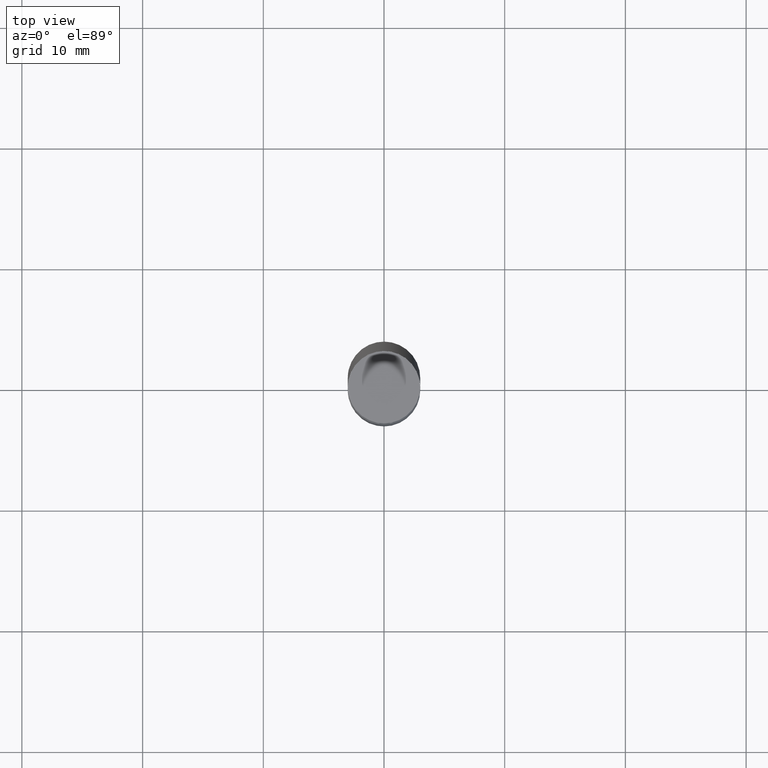
[diagram: clean part render]
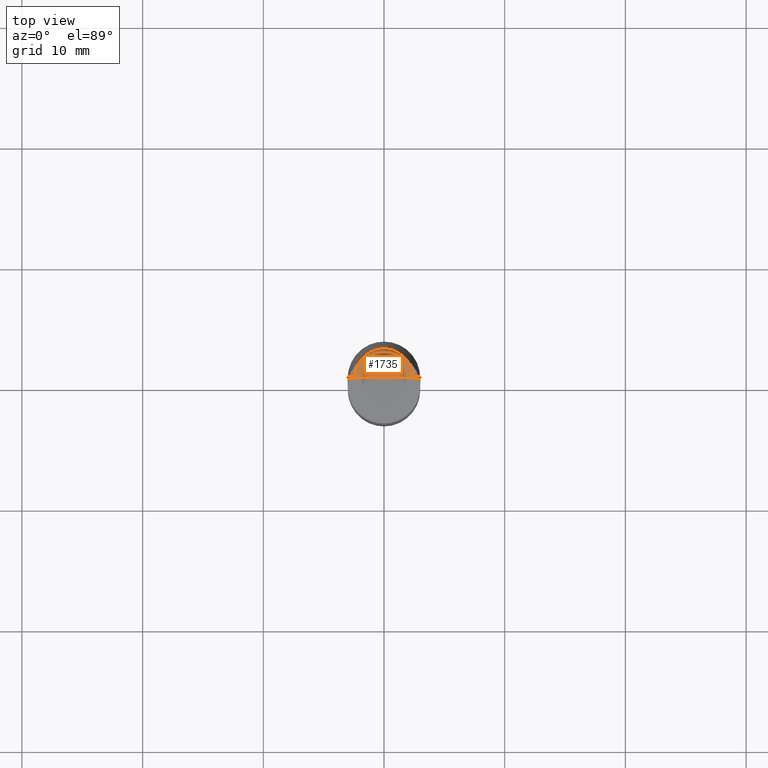
[diagram: same view with one face highlighted and labeled with its STEP entity id]
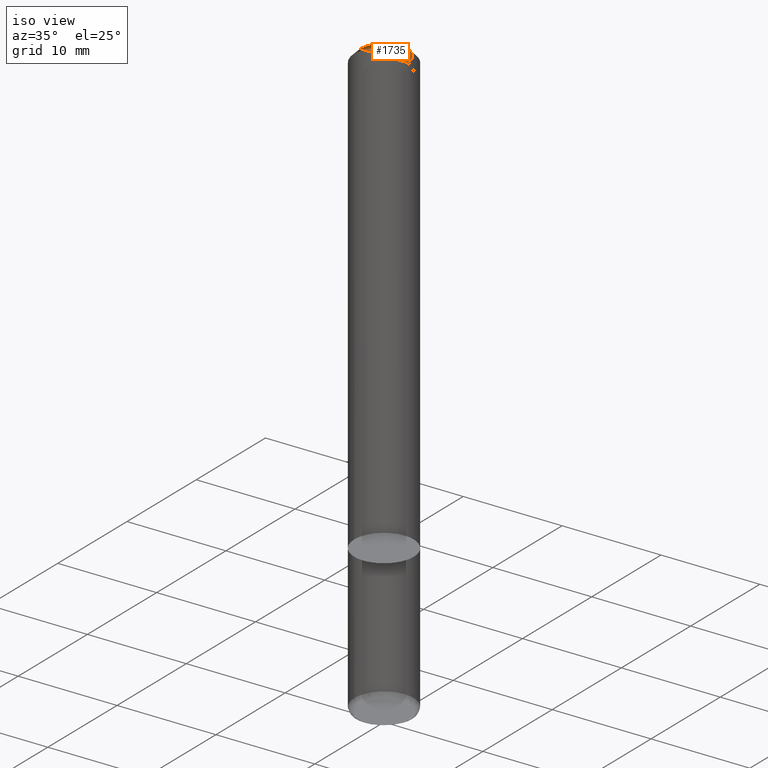
[diagram: same view with one face highlighted and labeled with its STEP entity id]
A machine part, top view. The second image highlights one B-rep face of the part: STEP entity #1735.
A second angle (iso view) of the same face is appended — the face is thin or edge-on in the first view.
In plain terms, the highlighted face is a freeform B-spline surface patch.
Its self-contained STEP definition (entity closure, byte-faithful):
#1495=CARTESIAN_POINT('',(2.4,0.0,45.0));
#1496=CARTESIAN_POINT('',(2.4,2.4,45.0));
#1497=CARTESIAN_POINT('',(0.0,2.4,45.0));
#1498=CARTESIAN_POINT('',(-2.4,2.4,45.0));
#1499=CARTESIAN_POINT('',(-2.4,0.0,45.0));
#1500=CARTESIAN_POINT('',(0.0,0.0,45.0));
#1720=(
BOUNDED_SURFACE()
B_SPLINE_SURFACE(1,2,(
(#1495,#1496,#1497,#1498,#1499),
(#1500,#1500,#1500,#1500,#1500)
), .UNSPECIFIED.,.F.,.F.,.F.)
B_SPLINE_SURFACE_WITH_KNOTS((2,2),(3,2,3),(
0.0,1.0),(
0.0,0.5,1.0), .UNSPECIFIED.)
GEOMETRIC_REPRESENTATION_ITEM()
RATIONAL_B_SPLINE_SURFACE(((1.0,0.707106781187,1.0,0.707106781187,1.0),
(1.0,0.707106781187,1.0,0.707106781187,1.0)
))
REPRESENTATION_ITEM('')
SURFACE()
);
#1721=(
BOUNDED_CURVE()
B_SPLINE_CURVE(1,(#1500,#1495),.UNSPECIFIED.,.F.,.F.)
B_SPLINE_CURVE_WITH_KNOTS((2,2),
(0.0,1.0),.UNSPECIFIED.)
CURVE()
GEOMETRIC_REPRESENTATION_ITEM()
RATIONAL_B_SPLINE_CURVE((1.0,1.0))
REPRESENTATION_ITEM('')
);
#1722=(
BOUNDED_CURVE()
B_SPLINE_CURVE(2,(#1495,#1496,#1497,#1498,#1499),.UNSPECIFIED.,.F.,.F.)
B_SPLINE_CURVE_WITH_KNOTS((3,2,3),
(0.0,0.5,1.0),.UNSPECIFIED.)
CURVE()
GEOMETRIC_REPRESENTATION_ITEM()
RATIONAL_B_SPLINE_CURVE((1.0,0.707106781187,1.0,0.707106781187,1.0))
REPRESENTATION_ITEM('')
);
#1723=(
BOUNDED_CURVE()
B_SPLINE_CURVE(1,(#1499,#1500),.UNSPECIFIED.,.F.,.F.)
B_SPLINE_CURVE_WITH_KNOTS((2,2),
(0.0,1.0),.UNSPECIFIED.)
CURVE()
GEOMETRIC_REPRESENTATION_ITEM()
RATIONAL_B_SPLINE_CURVE((1.0,1.0))
REPRESENTATION_ITEM('')
);
#1724=VERTEX_POINT('',#1495);
#1725=VERTEX_POINT('',#1499);
#1726=VERTEX_POINT('',#1500);
#1727=EDGE_CURVE('',#1726,#1724,#1721,.T.);
#1728=EDGE_CURVE('',#1724,#1725,#1722,.T.);
#1729=EDGE_CURVE('',#1725,#1726,#1723,.T.);
#1730=ORIENTED_EDGE('',*,*,#1727,.T.);
#1731=ORIENTED_EDGE('',*,*,#1728,.T.);
#1732=ORIENTED_EDGE('',*,*,#1729,.T.);
#1733=EDGE_LOOP('',(#1730,#1731,#1732));
#1734=FACE_OUTER_BOUND('',#1733,.T.);
#1735=ADVANCED_FACE('',(#1734),#1720,.T.);